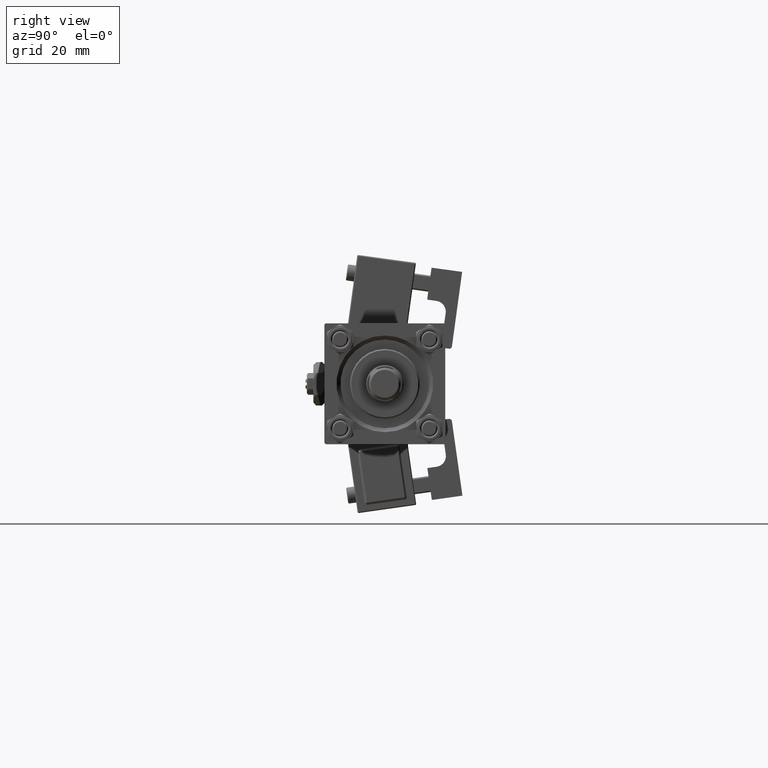
[diagram: clean part render]
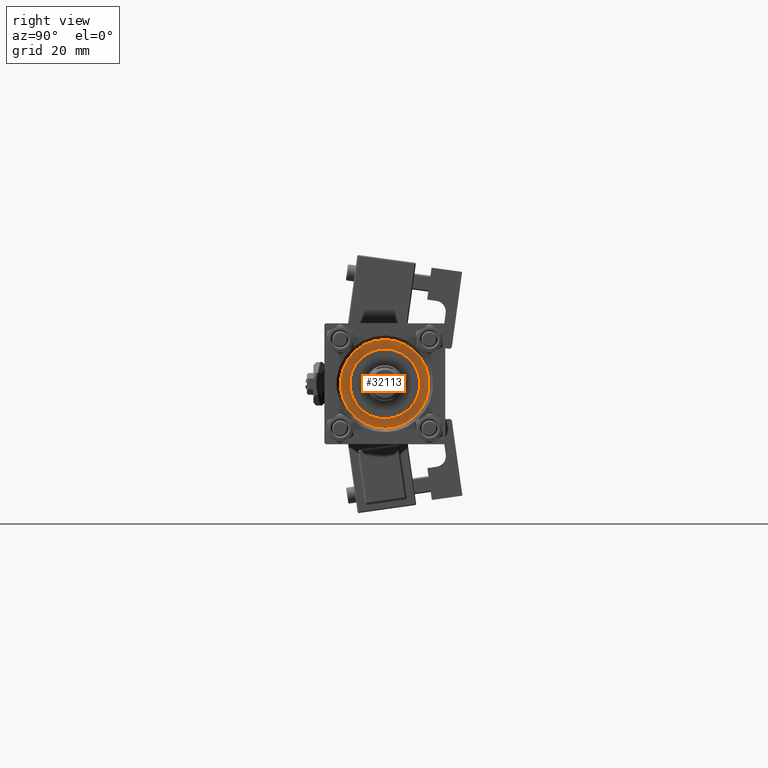
[diagram: same view with one face highlighted and labeled with its STEP entity id]
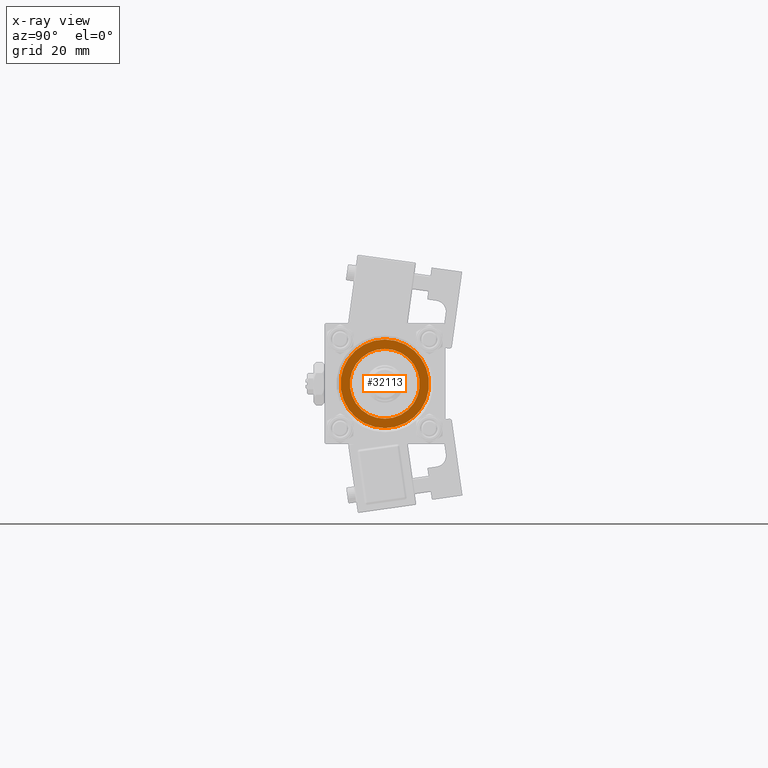
[diagram: x-ray of the same camera — body ghosted, the highlighted face saturated]
A machine part, right view. The second image highlights one B-rep face of the part: STEP entity #32113.
The next image is the same camera in x-ray: the body ghosted, the highlighted face saturated — about 0% of this face is hidden behind the body in this view.
In plain terms, the highlighted planar face has unit normal (1, 0, -0).
Its self-contained STEP definition (entity closure, byte-faithful):
#988 = EDGE_CURVE ( 'NONE', #40353, #11129, #22254, .T. ) ;
#1873 = DIRECTION ( 'NONE',  ( 0.000000000000000000, 0.000000000000000000, 1.000000000000000000 ) ) ;
#2971 = CARTESIAN_POINT ( 'NONE',  ( 0.000000000000000000, 0.000000000000000000, 28.69999999999999929 ) ) ;
#3902 = VERTEX_POINT ( 'NONE', #33664 ) ;
#6334 = CARTESIAN_POINT ( 'NONE',  ( 13.00000000000000178, 1.592040838891559293E-15, 28.69999999999999929 ) ) ;
#6839 = AXIS2_PLACEMENT_3D ( 'NONE', #22442, #1873, #44374 ) ;
#9040 = EDGE_CURVE ( 'NONE', #32238, #3902, #30470, .T. ) ;
#9086 = DIRECTION ( 'NONE',  ( 0.000000000000000000, 0.000000000000000000, 1.000000000000000000 ) ) ;
#10178 = DIRECTION ( 'NONE',  ( 1.000000000000000000, 0.000000000000000000, -0.000000000000000000 ) ) ;
#10995 = ORIENTED_EDGE ( 'NONE', *, *, #988, .T. ) ;
#11129 = VERTEX_POINT ( 'NONE', #21648 ) ;
#11316 = EDGE_CURVE ( 'NONE', #3902, #32238, #36543, .T. ) ;
#11778 = ORIENTED_EDGE ( 'NONE', *, *, #9040, .F. ) ;
#12890 = AXIS2_PLACEMENT_3D ( 'NONE', #2971, #52637, #47968 ) ;
#16619 = EDGE_LOOP ( 'NONE', ( #10995, #37623 ) ) ;
#17264 = DIRECTION ( 'NONE',  ( 0.000000000000000000, 0.000000000000000000, 1.000000000000000000 ) ) ;
#18268 = CARTESIAN_POINT ( 'NONE',  ( 0.000000000000000000, 0.000000000000000000, 28.69999999999999929 ) ) ;
#18391 = PLANE ( 'NONE',  #45842 ) ;
#18940 = ORIENTED_EDGE ( 'NONE', *, *, #11316, .F. ) ;
#19375 = EDGE_CURVE ( 'NONE', #11129, #40353, #38450, .T. ) ;
#21366 = DIRECTION ( 'NONE',  ( 1.000000000000000000, 0.000000000000000000, 0.000000000000000000 ) ) ;
#21648 = CARTESIAN_POINT ( 'NONE',  ( 16.50000000000000000, 2.020667218593133100E-15, 28.69999999999999929 ) ) ;
#22254 = CIRCLE ( 'NONE', #42455, 16.50000000000000000 ) ;
#22442 = CARTESIAN_POINT ( 'NONE',  ( 0.000000000000000000, 0.000000000000000000, 28.69999999999999929 ) ) ;
#30155 = CARTESIAN_POINT ( 'NONE',  ( 0.000000000000000000, 0.000000000000000000, 28.69999999999999929 ) ) ;
#30470 = CIRCLE ( 'NONE', #6839, 13.00000000000000178 ) ;
#32113 = ADVANCED_FACE ( 'NONE', ( #34055, #50799 ), #18391, .T. ) ;
#32238 = VERTEX_POINT ( 'NONE', #6334 ) ;
#33664 = CARTESIAN_POINT ( 'NONE',  ( -13.00000000000000178, 0.000000000000000000, 28.69999999999999929 ) ) ;
#34013 = DIRECTION ( 'NONE',  ( 1.000000000000000000, 0.000000000000000000, 0.000000000000000000 ) ) ;
#34055 = FACE_BOUND ( 'NONE', #51986, .T. ) ;
#36543 = CIRCLE ( 'NONE', #12890, 13.00000000000000178 ) ;
#37623 = ORIENTED_EDGE ( 'NONE', *, *, #19375, .T. ) ;
#38450 = CIRCLE ( 'NONE', #50730, 16.50000000000000000 ) ;
#39140 = CARTESIAN_POINT ( 'NONE',  ( -16.50000000000000000, 0.000000000000000000, 28.69999999999999929 ) ) ;
#40353 = VERTEX_POINT ( 'NONE', #39140 ) ;
#42455 = AXIS2_PLACEMENT_3D ( 'NONE', #30155, #17264, #34013 ) ;
#44374 = DIRECTION ( 'NONE',  ( 1.000000000000000000, 0.000000000000000000, 0.000000000000000000 ) ) ;
#45842 = AXIS2_PLACEMENT_3D ( 'NONE', #47742, #9086, #10178 ) ;
#47742 = CARTESIAN_POINT ( 'NONE',  ( 0.000000000000000000, 0.000000000000000000, 28.69999999999999929 ) ) ;
#47968 = DIRECTION ( 'NONE',  ( 1.000000000000000000, 0.000000000000000000, 0.000000000000000000 ) ) ;
#48175 = DIRECTION ( 'NONE',  ( 0.000000000000000000, 0.000000000000000000, 1.000000000000000000 ) ) ;
#50730 = AXIS2_PLACEMENT_3D ( 'NONE', #18268, #48175, #21366 ) ;
#50799 = FACE_OUTER_BOUND ( 'NONE', #16619, .T. ) ;
#51986 = EDGE_LOOP ( 'NONE', ( #18940, #11778 ) ) ;
#52637 = DIRECTION ( 'NONE',  ( 0.000000000000000000, 0.000000000000000000, 1.000000000000000000 ) ) ;